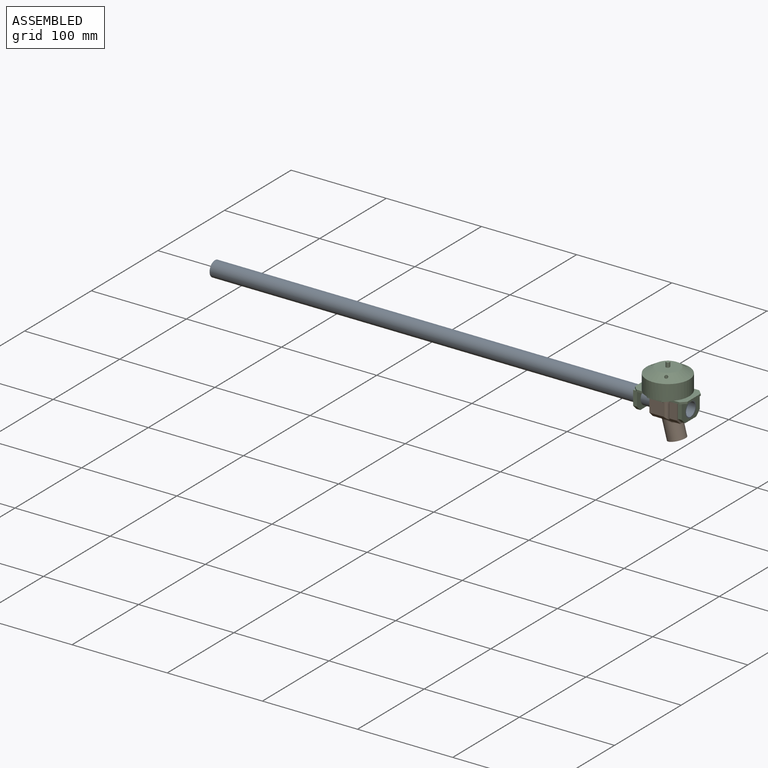
[diagram: assembled view]
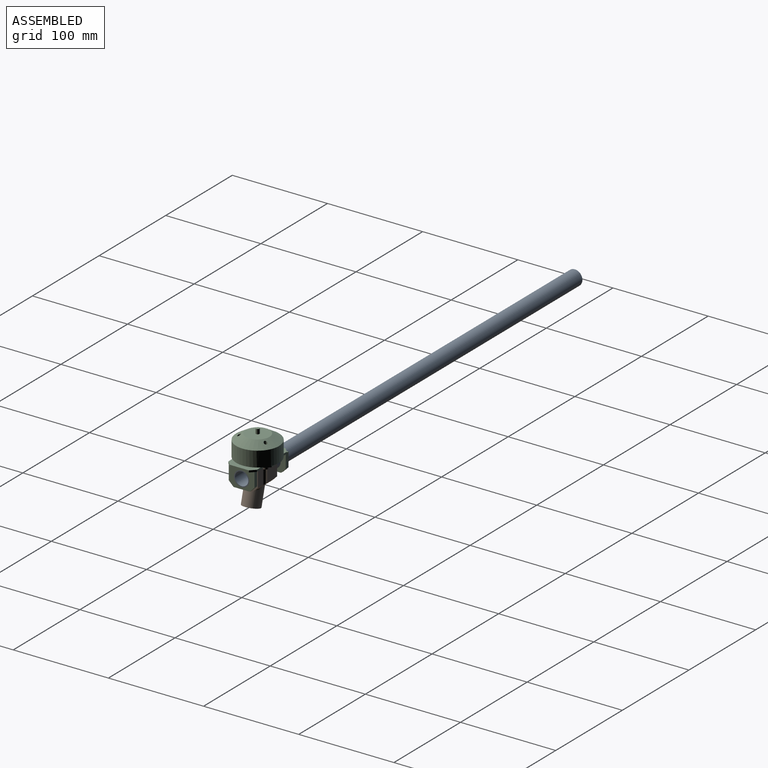
[diagram: assembled view, second angle]
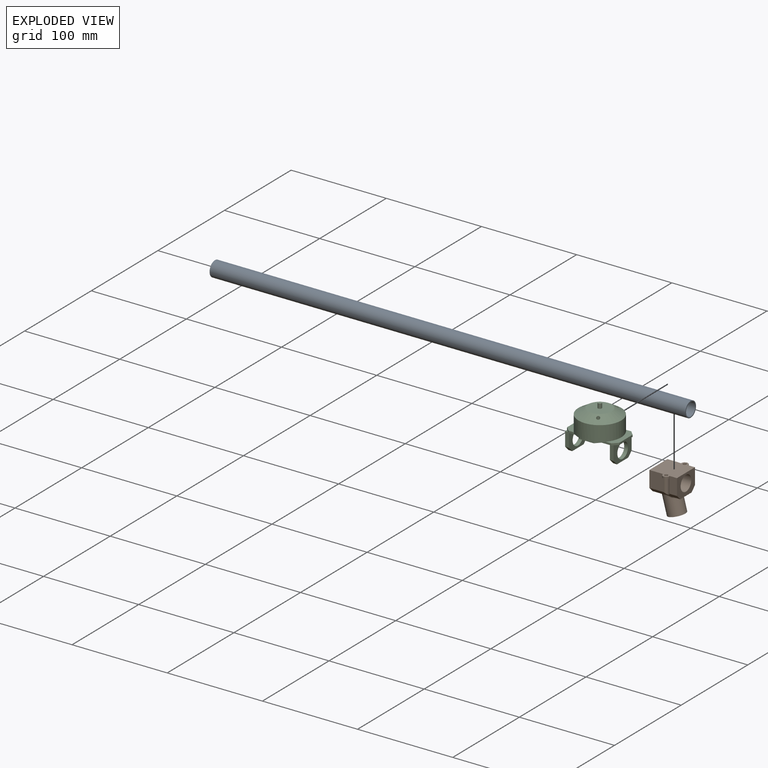
[diagram: exploded view]
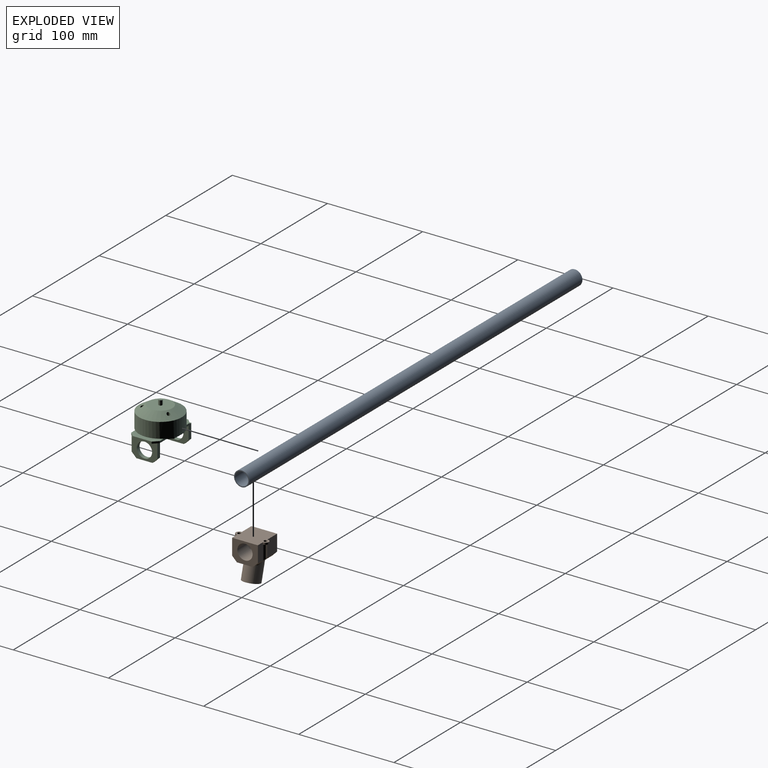
[diagram: exploded view, second angle]
ASSEMBLY  parts=3 mates=2
PART A: 4 faces, bbox 500x16x16 mm
  f0: cylinder r=7mm len=500mm, axis (-1,0,0), area 21991.1mm2, adj f2,f3
  f1: cylinder r=8mm len=500mm, axis (-1,0,0), area 25132.7mm2, adj f2,f3
  f2: plane 16x16mm, normal (1,0,0), area 47.1mm2, adj f0,f1
  f3: plane 16x16mm, normal (-1,0,0), area 47.1mm2, adj f0,f1
PART B: 28 faces, bbox 34.3x40x48.9 mm
  f0: plane 17x8.52mm, normal (0,0,-1), area 91.4mm2, adj f2,f3,f13,f26
  f1: plane 17x7.72mm, normal (0,0,-1), area 77.7mm2, adj f2,f3,f12,f25
  f2: plane 34.29x10.62mm, normal (0,0.71,-0.71), area 180.6mm2, adj f0,f1,f4,f6,f7,f12,f13,f25
  f3: plane 34.29x10.62mm, normal (0,-0.71,-0.71), area 180.6mm2, adj f0,f1,f5,f8,f9,f12,f13,f24
  f4: cylinder r=3mm len=15mm, axis (0,0,1), area 130.7mm2, adj f2,f6,f7,f17
  f5: cylinder r=3mm len=15mm, axis (0,0,1), area 130.7mm2, adj f3,f8,f9,f16
  f6: plane 17x15.02mm, normal (0,1,0), area 254.4mm2, adj f2,f4,f10,f13,f17,f18
  f7: plane 17x8.02mm, normal (0,1,0), area 135.4mm2, adj f2,f4,f10,f12,f17,f18
  f8: plane 17x15.02mm, normal (0,-1,0), area 254.4mm2, adj f3,f5,f10,f13,f14,f16
  f9: plane 17x8.02mm, normal (0,-1,0), area 135.4mm2, adj f3,f5,f10,f12,f14,f16
  f10: plane 34.71x29mm, normal (0,0,1), area 807.2mm2, adj f6,f7,f8,f9,f12,f13,f14,f15
  f11: cylinder r=8mm len=29mm, axis (-1,0,0), area 1457.7mm2, adj f12,f13
  f12: plane 27x22mm, normal (1,0,0), area 367.9mm2, adj f1,f2,f3,f7,f9,f10,f11
  f13: plane 27x22mm, normal (-1,0,0), area 367.9mm2, adj f0,f2,f3,f6,f8,f10,f11
  f14: cylinder r=3.5mm len=7mm, axis (0,0,1), area 23.4mm2, adj f8,f9,f10,f16
  f15: cylinder r=1.75mm len=3.5mm, axis (0,0,1), area 22mm2, adj f10,f16
  f16: plane 7x6.5mm, normal (0,0,-1), area 24.1mm2, adj f5,f8,f9,f14,f15
  f17: plane 7x6.5mm, normal (0,0,-1), area 24.1mm2, adj f4,f6,f7,f18,f19
  f18: cylinder r=3.5mm len=7mm, axis (0,0,1), area 23.4mm2, adj f6,f7,f10,f17
  f19: cylinder r=1.75mm len=3.5mm, axis (0,0,1), area 22mm2, adj f10,f17
  f20: plane 18x17.39mm, normal (0.26,0,-0.97), area 141.4mm2, adj f21,f22
  f21: cylinder r=9mm len=25.2mm, axis (0.26,0,-0.97), area 1056.6mm2, adj f20,f24,f25,f26,f27
  f22: cylinder r=6mm len=23.98mm, axis (0.26,0,-0.97), area 754mm2, adj f20,f23
  f23: plane 13.1x12.68mm, normal (0,0,-1), area 117.1mm2, adj f22
  f24: bspline ~10.77x2.63mm, area 13.3mm2, adj f3,f21,f25,f26
  f25: bspline ~18.24x6.2mm, area 52.2mm2, adj f1,f2,f3,f21,f24,f27
  f26: bspline ~18.24x6.2mm, area 40mm2, adj f0,f2,f3,f21,f24,f27
  f27: bspline ~10.77x2.63mm, area 13.3mm2, adj f2,f21,f25,f26
PART C: 51 faces, bbox 55x45x49 mm
  f0: plane 48x40mm, normal (0,0,-1), area 1464.2mm2, adj f3,f4,f5,f13,f14,f15,f17,f18
  f1: plane 21x0.5mm, normal (0,0,-1), area 10.3mm2, adj f15,f16,f17,f34
  f2: plane 33.54x7.5mm, normal (0,0,-1), area 74.2mm2, adj f6,f18,f19,f20,f21,f22
  f3: cylinder r=1.7mm len=22.92mm, axis (0,0,-1), area 233.6mm2, adj f0,f9
  f4: cylinder r=1.7mm len=22.92mm, axis (0,0,-1), area 233.6mm2, adj f0,f9
  f5: cylinder r=1.7mm len=22.92mm, axis (0,0,-1), area 233.6mm2, adj f0,f9
  f6: cylinder r=22.5mm len=45mm, axis (0,0,-1), area 2261.9mm2, adj f2,f8,f9,f29,f30
  f7: plane 25x25mm, normal (0,0,1), area 478.3mm2, adj f9,f10
  f8: plane 33.54x7.5mm, normal (0,0,-1), area 74.2mm2, adj f6,f13,f14,f26,f27,f28
  f9: cone r=12.5mm half-angle=59deg, axis (0,0,-1), area 1250.5mm2, adj f3,f4,f5,f6,f7
  f10: cylinder r=2mm len=5mm, axis (0,0,-1), area 62.8mm2, adj f7,f11
  f11: plane 4x4mm, normal (0,0,1), area 12.6mm2, adj f10
  f12: plane 27x3.5mm, normal (0,0,-1), area 82.2mm2, adj f23,f24,f25,f40
  f13: plane 5x5mm, normal (-0.71,-0.71,0), area 14.1mm2, adj f0,f8,f14,f28
  f14: plane 10x2mm, normal (0,-1,0), area 20mm2, adj f0,f8,f13,f15,f30
  f15: plane 5x5mm, normal (-0.71,-0.71,0), area 14.1mm2, adj f0,f1,f14,f16,f30,f33
  f16: plane 20x2mm, normal (-1,0,0), area 40mm2, adj f1,f15,f17,f30
  f17: plane 5x5mm, normal (-0.71,0.71,0), area 14.1mm2, adj f0,f1,f16,f18,f30,f39
  f18: plane 10x2mm, normal (0,1,0), area 20mm2, adj f0,f2,f17,f19,f30
  f19: plane 5x5mm, normal (-0.71,0.71,0), area 14.1mm2, adj f0,f2,f18,f20
  f20: plane 15x2mm, normal (0,1,0), area 30mm2, adj f0,f2,f19,f21
  f21: plane 5x5mm, normal (0.71,0.71,0), area 14.1mm2, adj f0,f2,f20,f22
  f22: plane 10x2mm, normal (0,1,0), area 20mm2, adj f0,f2,f21,f23,f29
  f23: plane 5x5mm, normal (0.71,0.71,0), area 14.1mm2, adj f0,f12,f22,f24,f29
  f24: plane 20x2mm, normal (1,0,0), area 40mm2, adj f12,f23,f25,f29
  f25: plane 5x5mm, normal (0.71,-0.71,0), area 14.1mm2, adj f0,f12,f24,f26,f29
  f26: plane 10x2mm, normal (0,-1,0), area 20mm2, adj f0,f8,f25,f27,f29
  f27: plane 5x5mm, normal (0.71,-0.71,0), area 14.1mm2, adj f0,f8,f26,f28
  f28: plane 15x2mm, normal (0,-1,0), area 30mm2, adj f0,f8,f13,f27
  f29: plane 30x10.73mm, normal (0,0,1), area 179mm2, adj f6,f22,f23,f24,f25,f26
  f30: plane 30x10.73mm, normal (0,0,1), area 179mm2, adj f6,f14,f15,f16,f17,f18
  f31: cylinder r=1.7mm len=3.4mm, axis (0,0,1), area 21.4mm2, adj f0,f32
  f32: plane 3.4x3.4mm, normal (0,0,-1), area 9.1mm2, adj f31
  f33: plane 3x3mm, normal (0,0,1), area 4.5mm2, adj f15,f34,f37
  f34: plane 27x20mm, normal (-1,0,0), area 313.9mm2, adj f1,f33,f35,f37,f38,f39,f47,f48
  f35: plane 15x4mm, normal (0,1,0), area 60mm2, adj f0,f34,f36,f39,f47
  f36: plane 27x20mm, normal (1,0,0), area 313.9mm2, adj f0,f35,f37,f38,f47,f48,f50
  f37: plane 15x4mm, normal (0,-1,0), area 60mm2, adj f0,f33,f34,f36,f48
  f38: plane 17x4mm, normal (0,0,-1), area 68mm2, adj f34,f36,f47,f48
  f39: plane 3x3mm, normal (0,0,1), area 4.5mm2, adj f17,f34,f35
  f40: plane 27x20mm, normal (1,0,0), area 313.9mm2, adj f12,f41,f43,f44,f45,f46,f49
  f41: plane 15x4mm, normal (0,-1,0), area 60mm2, adj f0,f40,f42,f45
  f42: plane 27x20mm, normal (-1,0,0), area 313.9mm2, adj f0,f41,f43,f44,f45,f46,f49
  f43: plane 15x4mm, normal (0,1,0), area 60mm2, adj f0,f40,f42,f46
  f44: plane 17x4mm, normal (0,0,-1), area 68mm2, adj f40,f42,f45,f46
  f45: plane 5x5mm, normal (0,-0.71,-0.71), area 28.3mm2, adj f40,f41,f42,f44
  f46: plane 5x5mm, normal (0,0.71,-0.71), area 28.3mm2, adj f40,f42,f43,f44
  f47: plane 5x5mm, normal (0,0.71,-0.71), area 28.3mm2, adj f34,f35,f36,f38
  f48: plane 5x5mm, normal (0,-0.71,-0.71), area 28.3mm2, adj f34,f36,f37,f38
  f49: cylinder r=8mm len=16mm, axis (-1,0,0), area 201.1mm2, adj f40,f42
  f50: cylinder r=8mm len=16mm, axis (-1,0,0), area 201.1mm2, adj f34,f36
PLACE A t=(0,275,0)mm
PLACE B t=(476,0,12)mm
PLACE C t=(476,0,12)mm
MATE fastened C.f49 <-> A.f1  axis (1,0,0) through (500,0,0)mm
MATE fastened B.f5 <-> C.f5  axis (0,0,1) through (484,-13.86,10)mm
